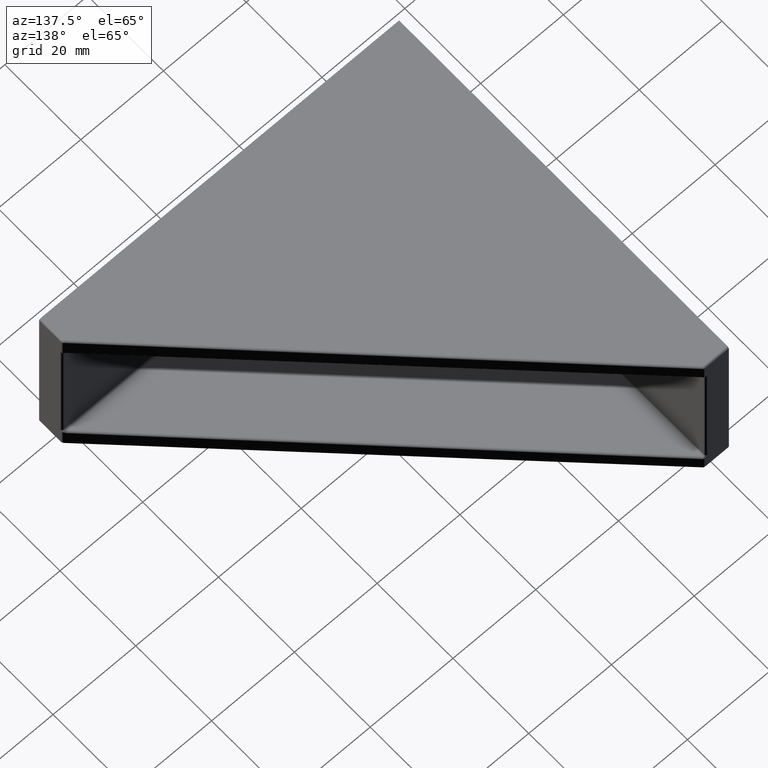
[diagram: clean part render]
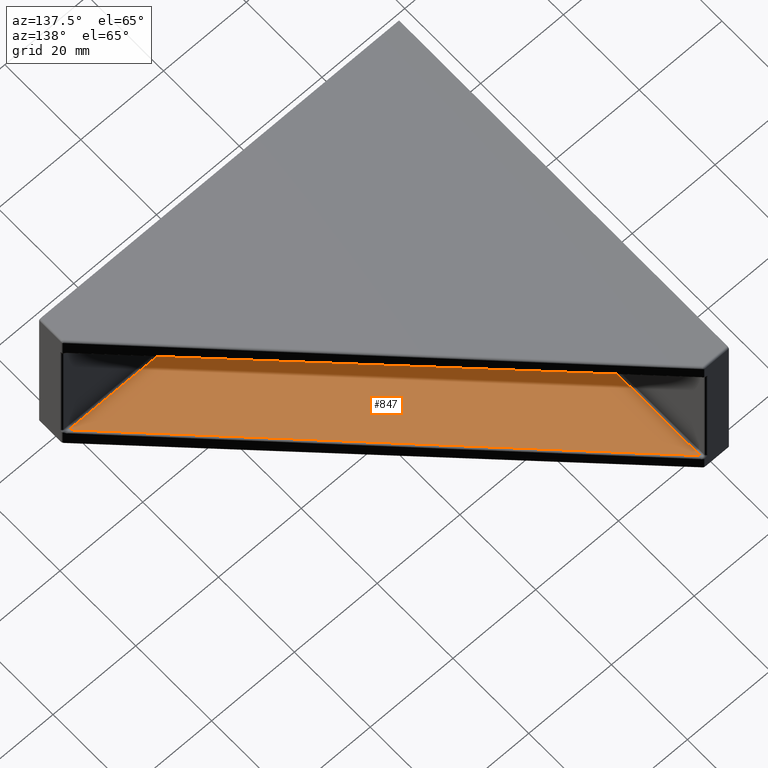
[diagram: same view with one face highlighted and labeled with its STEP entity id]
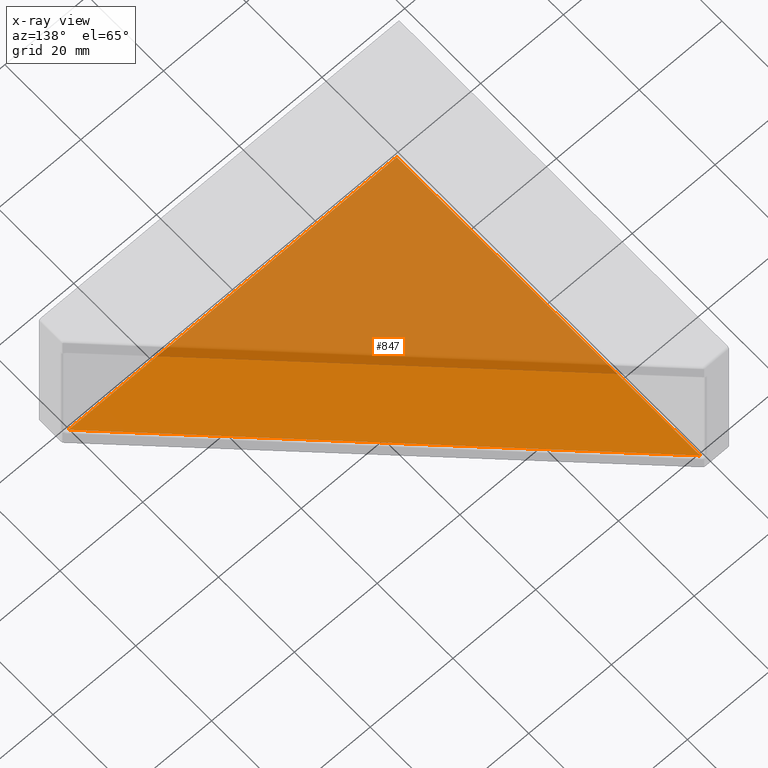
[diagram: x-ray of the same camera — body ghosted, the highlighted face saturated]
A machine part, auxiliary view. The second image highlights one B-rep face of the part: STEP entity #847.
The next image is the same camera in x-ray: the body ghosted, the highlighted face saturated — about 53% of this face is hidden behind the body in this view.
In plain terms, the highlighted planar face has unit normal (0, 0.0044, 1).
Its self-contained STEP definition (entity closure, byte-faithful):
#816=CARTESIAN_POINT('',(-41.332052602546504,46.627127476002300,-16.867076170715681));
#817=DIRECTION('',(0.0,0.004363309284747,0.999990480720735));
#818=DIRECTION('',(0.0,-0.999990480720735,0.004363309284747));
#819=AXIS2_PLACEMENT_3D('',#816,#817,#818);
#820=PLANE('',#819);
#821=CARTESIAN_POINT('',(-37.002176915725407,-37.002181654642371,-16.502172156085777));
#822=VERTEX_POINT('',#821);
#823=CARTESIAN_POINT('',(42.297256528098202,-37.002181654642371,-16.502172156085777));
#824=VERTEX_POINT('',#823);
#825=CARTESIAN_POINT('',(-37.002176915725407,-37.002181654642371,-16.502172156085777));
#826=DIRECTION('',(1.0,0.0,0.0));
#827=VECTOR('',#826,79.299433443823588);
#828=LINE('',#825,#827);
#829=EDGE_CURVE('',#822,#824,#828,.T.);
#830=ORIENTED_EDGE('',*,*,#829,.T.);
#831=CARTESIAN_POINT('',(-37.349704548706278,42.644779422162081,-16.849699789066637));
#832=VERTEX_POINT('',#831);
#833=CARTESIAN_POINT('',(42.297256528098224,-37.002181654642371,-16.502172156085777));
#834=DIRECTION('',(-0.707103415589059,0.707103415589059,-0.003085340268731));
#835=VECTOR('',#834,112.638348678395080);
#836=LINE('',#833,#835);
#837=EDGE_CURVE('',#824,#832,#836,.T.);
#838=ORIENTED_EDGE('',*,*,#837,.T.);
#839=CARTESIAN_POINT('',(-37.349704548706278,42.644779422162067,-16.849699789066637));
#840=DIRECTION('',(0.004363267749978,-0.999980961713314,0.004363267749978));
#841=VECTOR('',#840,79.648477447352192);
#842=LINE('',#839,#841);
#843=EDGE_CURVE('',#832,#822,#842,.T.);
#844=ORIENTED_EDGE('',*,*,#843,.T.);
#845=EDGE_LOOP('',(#830,#838,#844));
#846=FACE_OUTER_BOUND('',#845,.T.);
#847=ADVANCED_FACE('',(#846),#820,.T.);